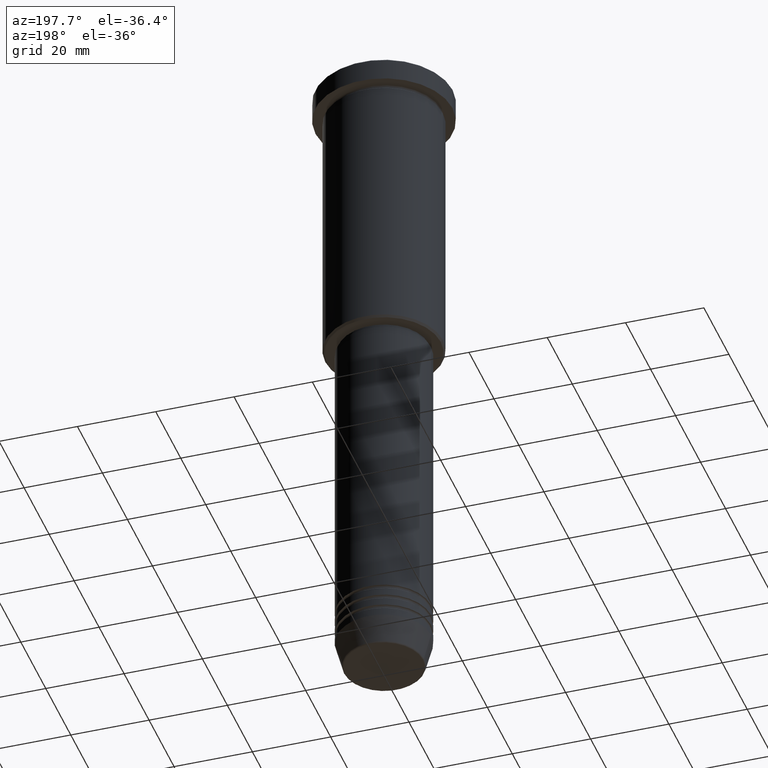
[diagram: clean part render]
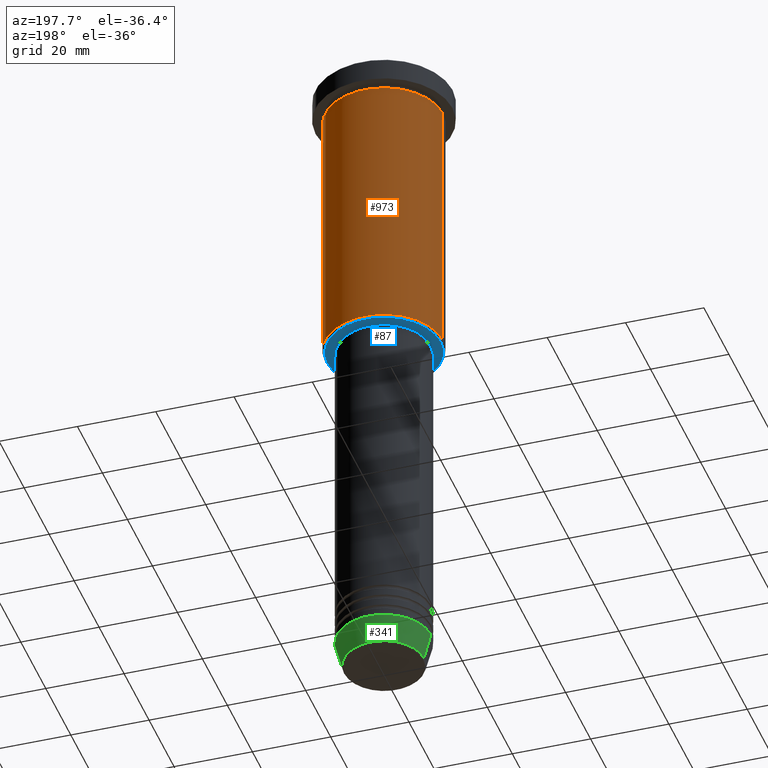
[diagram: same view with three faces highlighted in distinct colors, each labeled with its STEP entity id]
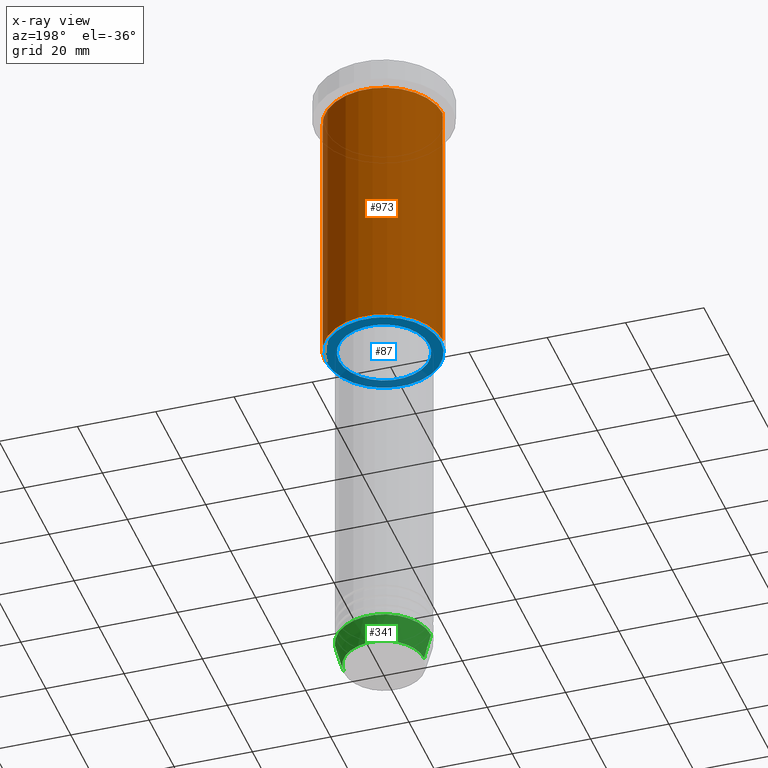
[diagram: x-ray of the same camera — body ghosted, the three highlighted faces saturated]
A machine part, auxiliary view with three faces highlighted in distinct colors.
The next image is the same camera in x-ray (body ghosted, the three faces saturated) — at least one of them is partly hidden behind the body in this view.
Their STEP definitions:

[orange] entity #973 — the highlighted cylindrical surface (partial cylindrical patch) has radius 15 mm, axis along (-0, -0, 1).
#10 = AXIS2_PLACEMENT_3D ( 'NONE', #272, #38, #1122 ) ;
#36 = EDGE_CURVE ( 'NONE', #725, #578, #963, .T. ) ;
#38 = DIRECTION ( 'NONE',  ( -0.000000000000000000, -0.000000000000000000, 1.000000000000000000 ) ) ;
#49 = AXIS2_PLACEMENT_3D ( 'NONE', #1001, #458, #455 ) ;
#80 = FACE_OUTER_BOUND ( 'NONE', #702, .T. ) ;
#207 = ORIENTED_EDGE ( 'NONE', *, *, #36, .T. ) ;
#224 = VECTOR ( 'NONE', #1111, 1000.000000000000000 ) ;
#272 = CARTESIAN_POINT ( 'NONE',  ( 0.000000000000000000, 0.000000000000000000, -75.50000000000001421 ) ) ;
#403 = CARTESIAN_POINT ( 'NONE',  ( -15.00000000000000000, 1.836970198721029589E-15, 0.000000000000000000 ) ) ;
#412 = VERTEX_POINT ( 'NONE', #688 ) ;
#415 = LINE ( 'NONE', #1170, #1081 ) ;
#435 = ORIENTED_EDGE ( 'NONE', *, *, #748, .F. ) ;
#437 = DIRECTION ( 'NONE',  ( -0.000000000000000000, -0.000000000000000000, 1.000000000000000000 ) ) ;
#446 = CARTESIAN_POINT ( 'NONE',  ( 15.00000000000000000, 0.000000000000000000, -6.999999999999995559 ) ) ;
#455 = DIRECTION ( 'NONE',  ( 1.000000000000000000, 0.000000000000000000, 0.000000000000000000 ) ) ;
#458 = DIRECTION ( 'NONE',  ( -0.000000000000000000, -0.000000000000000000, 1.000000000000000000 ) ) ;
#460 = CARTESIAN_POINT ( 'NONE',  ( 0.000000000000000000, 0.000000000000000000, 0.000000000000000000 ) ) ;
#485 = EDGE_CURVE ( 'NONE', #495, #412, #551, .T. ) ;
#495 = VERTEX_POINT ( 'NONE', #446 ) ;
#534 = AXIS2_PLACEMENT_3D ( 'NONE', #460, #812, #822 ) ;
#551 = CIRCLE ( 'NONE', #49, 15.00000000000000000 ) ;
#578 = VERTEX_POINT ( 'NONE', #1106 ) ;
#688 = CARTESIAN_POINT ( 'NONE',  ( -15.00000000000000000, 1.836970198721029589E-15, -6.999999999999995559 ) ) ;
#702 = EDGE_LOOP ( 'NONE', ( #207, #745, #1142, #435 ) ) ;
#725 = VERTEX_POINT ( 'NONE', #868 ) ;
#745 = ORIENTED_EDGE ( 'NONE', *, *, #1146, .T. ) ;
#748 = EDGE_CURVE ( 'NONE', #725, #495, #415, .T. ) ;
#812 = DIRECTION ( 'NONE',  ( -0.000000000000000000, -0.000000000000000000, 1.000000000000000000 ) ) ;
#822 = DIRECTION ( 'NONE',  ( 1.000000000000000000, 0.000000000000000000, 0.000000000000000000 ) ) ;
#827 = CYLINDRICAL_SURFACE ( 'NONE', #534, 15.00000000000000000 ) ;
#868 = CARTESIAN_POINT ( 'NONE',  ( 15.00000000000000000, 0.000000000000000000, -75.50000000000001421 ) ) ;
#949 = LINE ( 'NONE', #403, #224 ) ;
#963 = CIRCLE ( 'NONE', #10, 15.00000000000000000 ) ;
#973 = ADVANCED_FACE ( 'NONE', ( #80 ), #827, .T. ) ;
#1001 = CARTESIAN_POINT ( 'NONE',  ( 0.000000000000000000, 0.000000000000000000, -6.999999999999995559 ) ) ;
#1081 = VECTOR ( 'NONE', #437, 1000.000000000000000 ) ;
#1106 = CARTESIAN_POINT ( 'NONE',  ( -15.00000000000000000, 1.836970198721029589E-15, -75.50000000000001421 ) ) ;
#1111 = DIRECTION ( 'NONE',  ( -0.000000000000000000, -0.000000000000000000, 1.000000000000000000 ) ) ;
#1122 = DIRECTION ( 'NONE',  ( -1.000000000000000000, 0.000000000000000000, 0.000000000000000000 ) ) ;
#1142 = ORIENTED_EDGE ( 'NONE', *, *, #485, .F. ) ;
#1146 = EDGE_CURVE ( 'NONE', #578, #412, #949, .T. ) ;
#1170 = CARTESIAN_POINT ( 'NONE',  ( 15.00000000000000000, 0.000000000000000000, 0.000000000000000000 ) ) ;

[blue] entity #87 — the highlighted planar face has unit normal (0, 0, -1).
#52 = AXIS2_PLACEMENT_3D ( 'NONE', #941, #846, #936 ) ;
#69 = AXIS2_PLACEMENT_3D ( 'NONE', #665, #494, #770 ) ;
#87 = ADVANCED_FACE ( 'NONE', ( #194, #447 ), #638, .T. ) ;
#152 = ORIENTED_EDGE ( 'NONE', *, *, #706, .T. ) ;
#194 = FACE_OUTER_BOUND ( 'NONE', #881, .T. ) ;
#206 = AXIS2_PLACEMENT_3D ( 'NONE', #804, #692, #252 ) ;
#227 = EDGE_LOOP ( 'NONE', ( #596, #653 ) ) ;
#228 = CARTESIAN_POINT ( 'NONE',  ( 11.50000000000000000, 0.000000000000000000, -76.00000000000000000 ) ) ;
#252 = DIRECTION ( 'NONE',  ( 1.000000000000000000, 0.000000000000000000, 0.000000000000000000 ) ) ;
#268 = DIRECTION ( 'NONE',  ( 0.000000000000000000, 0.000000000000000000, -1.000000000000000000 ) ) ;
#332 = CARTESIAN_POINT ( 'NONE',  ( 14.50000000000001066, 0.000000000000000000, -76.00000000000000000 ) ) ;
#442 = CIRCLE ( 'NONE', #206, 11.50000000000000000 ) ;
#447 = FACE_BOUND ( 'NONE', #227, .T. ) ;
#463 = DIRECTION ( 'NONE',  ( 0.000000000000000000, 0.000000000000000000, -1.000000000000000000 ) ) ;
#494 = DIRECTION ( 'NONE',  ( -0.000000000000000000, -0.000000000000000000, 1.000000000000000000 ) ) ;
#505 = CARTESIAN_POINT ( 'NONE',  ( 0.000000000000000000, 0.000000000000000000, -76.00000000000000000 ) ) ;
#545 = VERTEX_POINT ( 'NONE', #1167 ) ;
#547 = CARTESIAN_POINT ( 'NONE',  ( 0.000000000000000000, 15.00000000000000000, -76.00000000000000000 ) ) ;
#584 = EDGE_CURVE ( 'NONE', #545, #693, #1116, .T. ) ;
#589 = CIRCLE ( 'NONE', #52, 14.50000000000001066 ) ;
#596 = ORIENTED_EDGE ( 'NONE', *, *, #920, .T. ) ;
#638 = PLANE ( 'NONE',  #833 ) ;
#653 = ORIENTED_EDGE ( 'NONE', *, *, #584, .T. ) ;
#655 = CARTESIAN_POINT ( 'NONE',  ( -14.50000000000001066, 1.806354028742346591E-15, -76.00000000000000000 ) ) ;
#665 = CARTESIAN_POINT ( 'NONE',  ( 0.000000000000000000, 0.000000000000000000, -76.00000000000000000 ) ) ;
#692 = DIRECTION ( 'NONE',  ( -0.000000000000000000, -0.000000000000000000, 1.000000000000000000 ) ) ;
#693 = VERTEX_POINT ( 'NONE', #228 ) ;
#706 = EDGE_CURVE ( 'NONE', #1071, #823, #1177, .T. ) ;
#722 = DIRECTION ( 'NONE',  ( -1.000000000000000000, 0.000000000000000000, -0.000000000000000000 ) ) ;
#770 = DIRECTION ( 'NONE',  ( 1.000000000000000000, 0.000000000000000000, 0.000000000000000000 ) ) ;
#804 = CARTESIAN_POINT ( 'NONE',  ( 0.000000000000000000, 0.000000000000000000, -76.00000000000000000 ) ) ;
#823 = VERTEX_POINT ( 'NONE', #332 ) ;
#830 = DIRECTION ( 'NONE',  ( -1.000000000000000000, 0.000000000000000000, 0.000000000000000000 ) ) ;
#833 = AXIS2_PLACEMENT_3D ( 'NONE', #547, #268, #722 ) ;
#846 = DIRECTION ( 'NONE',  ( 0.000000000000000000, 0.000000000000000000, -1.000000000000000000 ) ) ;
#881 = EDGE_LOOP ( 'NONE', ( #908, #152 ) ) ;
#908 = ORIENTED_EDGE ( 'NONE', *, *, #1114, .T. ) ;
#920 = EDGE_CURVE ( 'NONE', #693, #545, #442, .T. ) ;
#936 = DIRECTION ( 'NONE',  ( -1.000000000000000000, 0.000000000000000000, 0.000000000000000000 ) ) ;
#941 = CARTESIAN_POINT ( 'NONE',  ( 0.000000000000000000, 0.000000000000000000, -76.00000000000000000 ) ) ;
#948 = AXIS2_PLACEMENT_3D ( 'NONE', #505, #463, #830 ) ;
#1071 = VERTEX_POINT ( 'NONE', #655 ) ;
#1114 = EDGE_CURVE ( 'NONE', #823, #1071, #589, .T. ) ;
#1116 = CIRCLE ( 'NONE', #69, 11.50000000000000000 ) ;
#1167 = CARTESIAN_POINT ( 'NONE',  ( -11.50000000000000000, 1.408343819019456176E-15, -76.00000000000000000 ) ) ;
#1177 = CIRCLE ( 'NONE', #948, 14.50000000000001066 ) ;

[green] entity #341 — the highlighted conical surface has half-angle 15 deg.
#1 = CARTESIAN_POINT ( 'NONE',  ( 0.000000000000000000, 0.000000000000000000, -164.0000000000000000 ) ) ;
#35 = CARTESIAN_POINT ( 'NONE',  ( 0.000000000000000000, 0.000000000000000000, -170.6294095225512706 ) ) ;
#41 = DIRECTION ( 'NONE',  ( -0.000000000000000000, -0.000000000000000000, 1.000000000000000000 ) ) ;
#57 = DIRECTION ( 'NONE',  ( 1.000000000000000000, 0.000000000000000000, 0.000000000000000000 ) ) ;
#70 = ORIENTED_EDGE ( 'NONE', *, *, #1171, .T. ) ;
#78 = DIRECTION ( 'NONE',  ( 0.2588190451025213501, 0.000000000000000000, 0.9659258262890680902 ) ) ;
#101 = VERTEX_POINT ( 'NONE', #1098 ) ;
#288 = DIRECTION ( 'NONE',  ( -0.000000000000000000, -0.000000000000000000, 1.000000000000000000 ) ) ;
#339 = AXIS2_PLACEMENT_3D ( 'NONE', #1027, #613, #57 ) ;
#341 = ADVANCED_FACE ( 'NONE', ( #673 ), #714, .T. ) ;
#396 = CARTESIAN_POINT ( 'NONE',  ( -12.00000000000000000, 1.469576158976823947E-15, -164.0000000000000000 ) ) ;
#410 = DIRECTION ( 'NONE',  ( 1.000000000000000000, 0.000000000000000000, 0.000000000000000000 ) ) ;
#423 = ORIENTED_EDGE ( 'NONE', *, *, #503, .F. ) ;
#503 = EDGE_CURVE ( 'NONE', #101, #678, #1072, .T. ) ;
#516 = VERTEX_POINT ( 'NONE', #819 ) ;
#613 = DIRECTION ( 'NONE',  ( -0.000000000000000000, -0.000000000000000000, 1.000000000000000000 ) ) ;
#624 = CIRCLE ( 'NONE', #684, 10.22365507213719660 ) ;
#634 = ORIENTED_EDGE ( 'NONE', *, *, #731, .T. ) ;
#643 = VECTOR ( 'NONE', #78, 1000.000000000000000 ) ;
#645 = CIRCLE ( 'NONE', #1159, 12.00000000000000000 ) ;
#673 = FACE_OUTER_BOUND ( 'NONE', #729, .T. ) ;
#678 = VERTEX_POINT ( 'NONE', #1025 ) ;
#684 = AXIS2_PLACEMENT_3D ( 'NONE', #35, #41, #410 ) ;
#714 = CONICAL_SURFACE ( 'NONE', #339, 12.00000000000000000, 0.2617993877991500740 ) ;
#719 = VECTOR ( 'NONE', #758, 1000.000000000000000 ) ;
#729 = EDGE_LOOP ( 'NONE', ( #634, #70, #1110, #423 ) ) ;
#731 = EDGE_CURVE ( 'NONE', #101, #1048, #624, .T. ) ;
#758 = DIRECTION ( 'NONE',  ( -0.2588190451025213501, 3.169619151431772337E-17, 0.9659258262890680902 ) ) ;
#806 = CARTESIAN_POINT ( 'NONE',  ( 12.00000000000000000, 0.000000000000000000, -164.0000000000000000 ) ) ;
#819 = CARTESIAN_POINT ( 'NONE',  ( -12.00000000000000000, 1.469576158976823947E-15, -164.0000000000000000 ) ) ;
#861 = LINE ( 'NONE', #396, #719 ) ;
#940 = EDGE_CURVE ( 'NONE', #678, #516, #645, .T. ) ;
#1005 = CARTESIAN_POINT ( 'NONE',  ( -10.22365507213719837, 1.360806402472383336E-15, -170.6294095225512706 ) ) ;
#1025 = CARTESIAN_POINT ( 'NONE',  ( 12.00000000000000000, 0.000000000000000000, -164.0000000000000000 ) ) ;
#1027 = CARTESIAN_POINT ( 'NONE',  ( 0.000000000000000000, 0.000000000000000000, -164.0000000000000000 ) ) ;
#1048 = VERTEX_POINT ( 'NONE', #1005 ) ;
#1072 = LINE ( 'NONE', #806, #643 ) ;
#1098 = CARTESIAN_POINT ( 'NONE',  ( 10.22365507213719660, 0.000000000000000000, -170.6294095225512706 ) ) ;
#1110 = ORIENTED_EDGE ( 'NONE', *, *, #940, .F. ) ;
#1159 = AXIS2_PLACEMENT_3D ( 'NONE', #1, #288, #1178 ) ;
#1171 = EDGE_CURVE ( 'NONE', #1048, #516, #861, .T. ) ;
#1178 = DIRECTION ( 'NONE',  ( 1.000000000000000000, 0.000000000000000000, 0.000000000000000000 ) ) ;